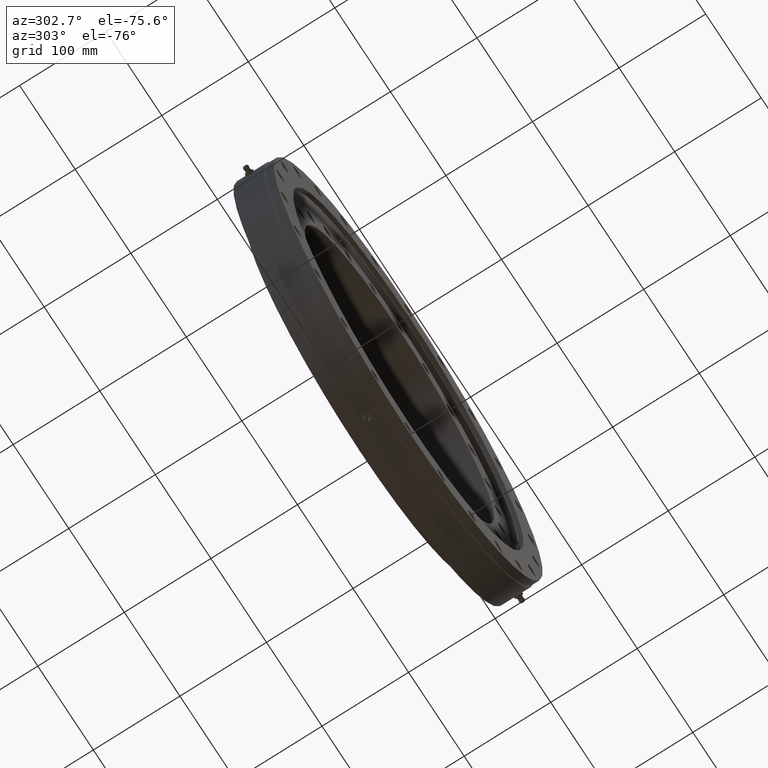
[diagram: clean part render]
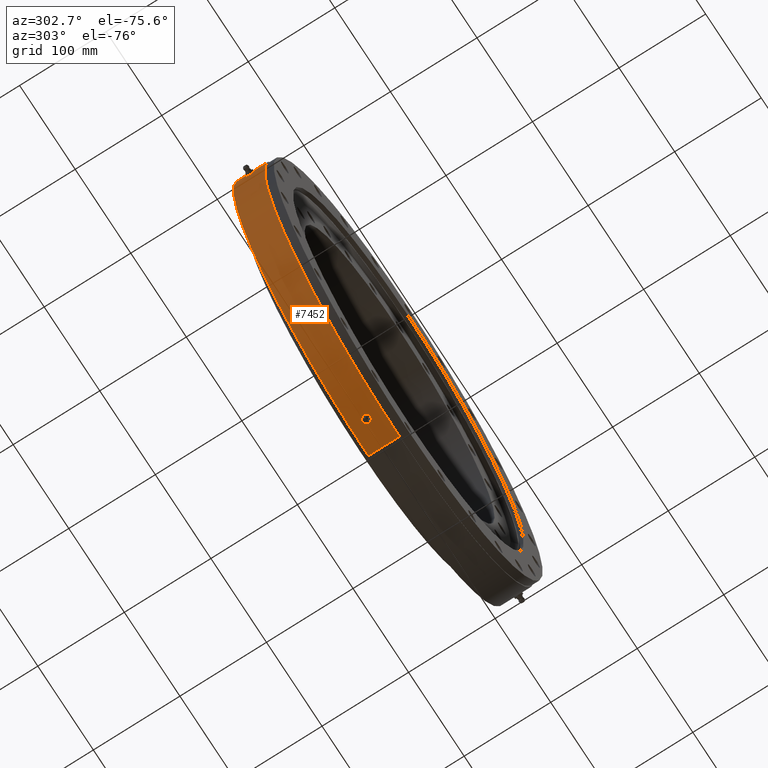
[diagram: same view with one face highlighted and labeled with its STEP entity id]
A machine part, auxiliary view. The second image highlights one B-rep face of the part: STEP entity #7452.
In plain terms, the highlighted cylindrical surface (partial cylindrical patch) has radius 243 mm, axis along (-0, 1, -0).
Its self-contained STEP definition (entity closure, byte-faithful):
#18 = CARTESIAN_POINT ( 'NONE',  ( -34.72491254708091200, 1.757442284641332000, -240.5061263413728300 ) ) ;
#20 = CARTESIAN_POINT ( 'NONE',  ( -241.1191026763337100, 3.144455854180189900, 30.17653216905824100 ) ) ;
#22 = CARTESIAN_POINT ( 'NONE',  ( -240.9809267302025800, 3.477012751141323100, 31.26088592137723400 ) ) ;
#99 = CARTESIAN_POINT ( 'NONE',  ( -241.1906164201388900, 2.782416166761482400, 29.59937113568640400 ) ) ;
#127 = CARTESIAN_POINT ( 'NONE',  ( -240.9516040616744000, 3.499804718934187000, 31.48615178787032700 ) ) ;
#128 = DIRECTION ( 'NONE',  ( -0.0000000000000000000, 1.000000000000000000, -0.0000000000000000000 ) ) ;
#135 = CARTESIAN_POINT ( 'NONE',  ( -240.8913668222058400, 3.500192813755318400, 31.94374187273907500 ) ) ;
#147 = LINE ( 'NONE', #3630, #7951 ) ;
#162 = CARTESIAN_POINT ( 'NONE',  ( -241.2685529993955500, 2.135343555572204500, 28.95689413755259900 ) ) ;
#166 = CARTESIAN_POINT ( 'NONE',  ( -241.2989256082384500, 1.751998858199931300, 28.70269821507032400 ) ) ;
#185 = CARTESIAN_POINT ( 'NONE',  ( -240.7139362015247500, -3.146202651099436800, 33.25425200555203300 ) ) ;
#201 = CARTESIAN_POINT ( 'NONE',  ( -241.3529515678563700, 0.2283797496406800300, 28.24451751197017300 ) ) ;
#253 = CARTESIAN_POINT ( 'NONE',  ( -241.2124371847255600, 2.634578848730858300, 29.42084538489981300 ) ) ;
#271 = CARTESIAN_POINT ( 'NONE',  ( -29.42084538489897500, 2.634578848730857900, -241.2124371847257600 ) ) ;
#295 = CARTESIAN_POINT ( 'NONE',  ( -28.42213462700708600, 1.127695102707587200, -241.3321152691196400 ) ) ;
#299 = LINE ( 'NONE', #7590, #6581 ) ;
#380 = CARTESIAN_POINT ( 'NONE',  ( -28.95689413755176700, 2.135343555572203600, -241.2685529993956700 ) ) ;
#392 = CARTESIAN_POINT ( 'NONE',  ( -28.59525260460150500, 1.548909344938113100, -241.3116638820062900 ) ) ;
#420 = CARTESIAN_POINT ( 'NONE',  ( -28.35537317190091100, 0.9064433533822586800, -241.3399569356119800 ) ) ;
#452 = CARTESIAN_POINT ( 'NONE',  ( -28.24451751196931700, 0.2283797496406801700, -241.3529515678564200 ) ) ;
#561 = CARTESIAN_POINT ( 'NONE',  ( -240.4651278621965100, -1.128307708272868100, 35.00757064697806000 ) ) ;
#575 = CARTESIAN_POINT ( 'NONE',  ( -241.2118900196123300, -2.638803523676507300, 29.42534312179625600 ) ) ;
#609 = CARTESIAN_POINT ( 'NONE',  ( -241.2685625646117800, -2.134968293939317100, 28.95680894287484700 ) ) ;
#630 = CARTESIAN_POINT ( 'NONE',  ( -241.3529515678563400, 3.712198269611329800E-009, 28.24451751197016600 ) ) ;
#651 = CARTESIAN_POINT ( 'NONE',  ( -241.3503811914468100, 0.4553559247066517600, 28.26650845336494900 ) ) ;
#695 = CARTESIAN_POINT ( 'NONE',  ( 2.975891721928068500E-014, 17.99999999999999600, -243.0000000000000000 ) ) ;
#774 = CARTESIAN_POINT ( 'NONE',  ( 0.0000000000000000000, 22.16364734299516900, 0.0000000000000000000 ) ) ;
#818 = CARTESIAN_POINT ( 'NONE',  ( -28.24451751196932000, 3.712198269611330200E-009, -241.3529515678564500 ) ) ;
#829 = CARTESIAN_POINT ( 'NONE',  ( -28.26650845336411100, 0.4553559247066516500, -241.3503811914469300 ) ) ;
#830 = CARTESIAN_POINT ( 'NONE',  ( -240.7712189265834000, -3.320720946241473300, 32.83693796150470900 ) ) ;
#885 = CARTESIAN_POINT ( 'NONE',  ( -240.8009401704551900, -3.387876472304710800, 32.61837294768805900 ) ) ;
#899 = CIRCLE ( 'NONE', #1870, 243.0000000000000000 ) ;
#943 = CARTESIAN_POINT ( 'NONE',  ( -35.18463154158597900, 3.712196848497612400E-009, -240.4392682223160000 ) ) ;
#1085 = EDGE_CURVE ( 'NONE', #1838, #4535, #3424, .T. ) ;
#1119 = CARTESIAN_POINT ( 'NONE',  ( -33.83506736415702000, -2.781634719699665100, -240.6329670407585600 ) ) ;
#1195 = CARTESIAN_POINT ( 'NONE',  ( -240.4425575392134200, -0.4586472358241421300, 35.16217429479539200 ) ) ;
#1254 = CARTESIAN_POINT ( 'NONE',  ( -32.61837294768721300, -3.387876472304709500, -240.8009401704553100 ) ) ;
#1264 = CARTESIAN_POINT ( 'NONE',  ( 0.0000000000000000000, 17.99999999999999600, 243.0000000000000000 ) ) ;
#1273 = CARTESIAN_POINT ( 'NONE',  ( -33.25425200555118700, -3.146202651099435900, -240.7139362015248600 ) ) ;
#1280 = CARTESIAN_POINT ( 'NONE',  ( -32.83693796150386400, -3.320720946241471500, -240.7712189265835700 ) ) ;
#1294 = EDGE_CURVE ( 'NONE', #8299, #4269, #7175, .T. ) ;
#1298 = CARTESIAN_POINT ( 'NONE',  ( -241.2512666094221200, 2.311676448635013400, 29.10072774187822700 ) ) ;
#1392 = CARTESIAN_POINT ( 'NONE',  ( -28.24451751196932000, 3.712198269611330200E-009, -241.3529515678564500 ) ) ;
#1477 = CARTESIAN_POINT ( 'NONE',  ( -240.5630846625418500, 2.315196556124911700, 34.32824544682481600 ) ) ;
#1478 = CARTESIAN_POINT ( 'NONE',  ( -28.24451751196932400, -0.2284313335087059000, -241.3529515678564200 ) ) ;
#1481 = CARTESIAN_POINT ( 'NONE',  ( -240.4392682223158300, 0.4624082631330342400, 35.18463154158680300 ) ) ;
#1487 = CARTESIAN_POINT ( 'NONE',  ( -34.00958345330650400, -2.636753741714202200, -240.6083421601263100 ) ) ;
#1495 = CARTESIAN_POINT ( 'NONE',  ( -241.0380180718742600, -3.387953241430623500, 30.81759603698869300 ) ) ;
#1498 = CARTESIAN_POINT ( 'NONE',  ( -240.5061263413727200, 1.757442284641337100, 34.72491254708176500 ) ) ;
#1505 = CARTESIAN_POINT ( 'NONE',  ( -240.6085499773024900, 2.638064779022696500, 34.00811396762021100 ) ) ;
#1506 = CARTESIAN_POINT ( 'NONE',  ( -28.26725448825875700, -0.4604170763101302400, -241.3502938152130100 ) ) ;
#1508 = CARTESIAN_POINT ( 'NONE',  ( -240.5425479235972500, 2.139171501301801100, 34.47171300586551000 ) ) ;
#1523 = CARTESIAN_POINT ( 'NONE',  ( -28.35611013354382200, -0.9088885414421924400, -241.3398703469610200 ) ) ;
#1524 = CARTESIAN_POINT ( 'NONE',  ( -240.6337395934463400, 2.785756367357565800, 33.82956584214708300 ) ) ;
#1532 = AXIS2_PLACEMENT_3D ( 'NONE', #774, #128, #3244 ) ;
#1533 = CARTESIAN_POINT ( 'NONE',  ( -29.42534312179541100, -2.638803523676508200, -241.2118900196124100 ) ) ;
#1564 = CARTESIAN_POINT ( 'NONE',  ( -28.59631392364659800, -1.551322616456310100, -241.3115383652525700 ) ) ;
#1581 = CARTESIAN_POINT ( 'NONE',  ( -28.70509491949122300, -1.755857761704131300, -241.2986398465832800 ) ) ;
#1591 = CARTESIAN_POINT ( 'NONE',  ( -240.8016190368143200, 3.389071178435659500, 32.61334498714048600 ) ) ;
#1593 = CARTESIAN_POINT ( 'NONE',  ( -240.6863879480369800, 3.039192833146311400, 33.45293428567472200 ) ) ;
#1607 = CARTESIAN_POINT ( 'NONE',  ( -240.7140111963404400, 3.146593086939689400, 33.25371966779230300 ) ) ;
#1617 = CARTESIAN_POINT ( 'NONE',  ( -241.3399569356118700, 0.9064433533822592300, 28.35537317190175300 ) ) ;
#1620 = CARTESIAN_POINT ( 'NONE',  ( -240.7717402698997400, 3.322145654968149000, 32.83312573271050600 ) ) ;
#1678 = CARTESIAN_POINT ( 'NONE',  ( -29.10089036872783600, -2.312148209654628400, -241.2512484618809800 ) ) ;
#1687 = CARTESIAN_POINT ( 'NONE',  ( -28.95680894287399500, -2.134968293939313500, -241.2685625646117800 ) ) ;
#1700 = CARTESIAN_POINT ( 'NONE',  ( -32.17056205587798700, -3.477719422679052200, -240.8611757376819500 ) ) ;
#1708 = CARTESIAN_POINT ( 'NONE',  ( -240.4392682223158600, 3.712198167923624000E-009, 35.18463154158681800 ) ) ;
#1732 = CARTESIAN_POINT ( 'NONE',  ( -240.4527685640396400, 0.9217573710211183200, 35.09268705196497300 ) ) ;
#1742 = VERTEX_POINT ( 'NONE', #7558 ) ;
#1744 = CARTESIAN_POINT ( 'NONE',  ( -240.4904716394561600, 1.553257856164766500, 34.83304033947684500 ) ) ;
#1800 = ORIENTED_EDGE ( 'NONE', *, *, #3787, .T. ) ;
#1801 = CARTESIAN_POINT ( 'NONE',  ( -241.0655808519011000, -3.321846791804257100, 30.60115397077885300 ) ) ;
#1814 = CARTESIAN_POINT ( 'NONE',  ( -33.45607648970316500, -3.037488619205876100, -240.6859521374086300 ) ) ;
#1838 = VERTEX_POINT ( 'NONE', #695 ) ;
#1870 = AXIS2_PLACEMENT_3D ( 'NONE', #5572, #5580, #5766 ) ;
#1899 = CARTESIAN_POINT ( 'NONE',  ( -31.26283506227028000, -3.477323251482655800, -240.9806745890331000 ) ) ;
#1910 = ORIENTED_EDGE ( 'NONE', *, *, #7539, .T. ) ;
#2030 = EDGE_CURVE ( 'NONE', #5781, #2214, #6524, .T. ) ;
#2065 = CARTESIAN_POINT ( 'NONE',  ( -30.81759603698784400, -3.387953241430622600, -241.0380180718743200 ) ) ;
#2180 = ORIENTED_EDGE ( 'NONE', *, *, #8188, .F. ) ;
#2208 = CARTESIAN_POINT ( 'NONE',  ( -240.4392682223158600, 3.712198167923624000E-009, 35.18463154158681800 ) ) ;
#2214 = VERTEX_POINT ( 'NONE', #2208 ) ;
#2307 = CARTESIAN_POINT ( 'NONE',  ( -240.9507378053163200, -3.500080710870365800, 31.49276211410816700 ) ) ;
#2321 = CARTESIAN_POINT ( 'NONE',  ( -34.32938319346411000, -2.313876657925268500, -240.5629221914053300 ) ) ;
#2330 = CARTESIAN_POINT ( 'NONE',  ( -29.97729043713422900, -3.036908214162354500, -241.1439363319118500 ) ) ;
#2331 = CARTESIAN_POINT ( 'NONE',  ( -34.47576405648488400, -2.133735774003275900, -240.5419668779303200 ) ) ;
#2396 = CARTESIAN_POINT ( 'NONE',  ( -34.83366322036394500, -1.552203200030042300, -240.4903815686522300 ) ) ;
#2511 = CARTESIAN_POINT ( 'NONE',  ( -35.07417789813611400, -0.9060143802480779000, -240.4554096332736900 ) ) ;
#2560 = CARTESIAN_POINT ( 'NONE',  ( -240.6859521374085200, -3.037488619205875700, 33.45607648970401000 ) ) ;
#2564 = CARTESIAN_POINT ( 'NONE',  ( -31.49276211410732200, -3.500080710870366700, -240.9507378053164600 ) ) ;
#2642 = CYLINDRICAL_SURFACE ( 'NONE', #1532, 243.0000000000000000 ) ;
#2679 = CARTESIAN_POINT ( 'NONE',  ( -241.1185802119558400, -3.146546317270871200, 30.18070861292664400 ) ) ;
#3019 = CARTESIAN_POINT ( 'NONE',  ( -30.60115397077800400, -3.321846791804256700, -241.0655808519011900 ) ) ;
#3090 = CARTESIAN_POINT ( 'NONE',  ( -241.3321525153319300, -1.127099090963811000, 28.42182050012058900 ) ) ;
#3244 = DIRECTION ( 'NONE',  ( 0.0000000000000000000, 0.0000000000000000000, 1.000000000000000000 ) ) ;
#3272 = B_SPLINE_CURVE_WITH_KNOTS ( 'NONE', 3,
 ( #5871, #6111, #4785, #2511, #4173, #2396, #5187, #2331, #2321, #1487, #1119, #1814, #1273, #1280, #1254, #1700, #4843, #2564, #1899, #2065, #3019, #5098, #2330, #3726, #1533, #1678, #1687, #1581, #1564, #4471, #1523, #1506, #1478, #1392 ),
 .UNSPECIFIED., .F., .F.,
 ( 4, 2, 2, 2, 2, 2, 2, 2, 2, 2, 2, 2, 2, 2, 2, 2, 4 ),
 ( 9.645115321492137600E-019, 0.0006839213565506646300, 0.001367842713101328200, 0.002051764069651991800, 0.002735685426202655500, 0.003419606782753319100, 0.004103528139303982800, 0.004787449495854646500, 0.005471370852405310100, 0.006155292208955973800, 0.006839213565506637400, 0.007523134922057301100, 0.008207056278607965600, 0.008890977635158630100, 0.009574898991709292900, 0.01025882034825995600, 0.01094274170481062000 ),
 .UNSPECIFIED. ) ;
#3289 = CARTESIAN_POINT ( 'NONE',  ( -240.8612334878946800, 3.477621149797298600, 32.17011353245743500 ) ) ;
#3302 = CARTESIAN_POINT ( 'NONE',  ( -240.8611757376818000, -3.477719422679051800, 32.17056205587883300 ) ) ;
#3307 = EDGE_LOOP ( 'NONE', ( #1910, #4358 ) ) ;
#3333 = CARTESIAN_POINT ( 'NONE',  ( -241.3116638820062600, 1.548909344938113100, 28.59525260460235800 ) ) ;
#3354 = CARTESIAN_POINT ( 'NONE',  ( -241.3321152691195600, 1.127695102707587000, 28.42213462700793200 ) ) ;
#3424 = CIRCLE ( 'NONE', #8266, 243.0000000000000000 ) ;
#3502 = ORIENTED_EDGE ( 'NONE', *, *, #1085, .F. ) ;
#3584 = ORIENTED_EDGE ( 'NONE', *, *, #7955, .T. ) ;
#3614 = CARTESIAN_POINT ( 'NONE',  ( -240.5419668779301800, -2.133735774003274100, 34.47576405648573700 ) ) ;
#3630 = CARTESIAN_POINT ( 'NONE',  ( 0.0000000000000000000, 22.16364734299516900, 243.0000000000000000 ) ) ;
#3682 = CARTESIAN_POINT ( 'NONE',  ( -241.3502938152127800, -0.4604170763101332900, 28.26725448825959200 ) ) ;
#3726 = CARTESIAN_POINT ( 'NONE',  ( -29.60082784711594100, -2.783473749434607600, -241.1904371287693900 ) ) ;
#3759 = VERTEX_POINT ( 'NONE', #6868 ) ;
#3787 = EDGE_CURVE ( 'NONE', #3759, #1742, #899, .T. ) ;
#3792 = CARTESIAN_POINT ( 'NONE',  ( -29.59937113568555100, 2.782416166761481100, -241.1906164201389200 ) ) ;
#3855 = CARTESIAN_POINT ( 'NONE',  ( -30.81717447229520700, 3.387787467424655300, -241.0380712540671800 ) ) ;
#3862 = ORIENTED_EDGE ( 'NONE', *, *, #1294, .T. ) ;
#3919 = CARTESIAN_POINT ( 'NONE',  ( -35.09268705196413400, 0.9217573710211186500, -240.4527685640397900 ) ) ;
#3967 = CARTESIAN_POINT ( 'NONE',  ( -34.83304033947600700, 1.553257856164766300, -240.4904716394563300 ) ) ;
#3983 = CARTESIAN_POINT ( 'NONE',  ( -34.47171300586467200, 2.139171501301797600, -240.5425479235974000 ) ) ;
#4010 = CARTESIAN_POINT ( 'NONE',  ( -34.32824544682395600, 2.315196556124909500, -240.5630846625419100 ) ) ;
#4040 = CARTESIAN_POINT ( 'NONE',  ( -34.00811396761934400, 2.638064779022693400, -240.6085499773025400 ) ) ;
#4064 = CARTESIAN_POINT ( 'NONE',  ( -31.26088592137637400, 3.477012751141322700, -240.9809267302027300 ) ) ;
#4112 = CARTESIAN_POINT ( 'NONE',  ( -33.45293428567388400, 3.039192833146310900, -240.6863879480371200 ) ) ;
#4159 = CARTESIAN_POINT ( 'NONE',  ( -33.82956584214622400, 2.785756367357564500, -240.6337395934462800 ) ) ;
#4173 = CARTESIAN_POINT ( 'NONE',  ( -35.00757064697721400, -1.128307708272867000, -240.4651278621966500 ) ) ;
#4232 = CARTESIAN_POINT ( 'NONE',  ( -33.25371966779144400, 3.146593086939690300, -240.7140111963405800 ) ) ;
#4236 = CARTESIAN_POINT ( 'NONE',  ( -32.17011353245659000, 3.477621149797297800, -240.8612334878947900 ) ) ;
#4237 = CARTESIAN_POINT ( 'NONE',  ( -240.4903815686520800, -1.552203200030042300, 34.83366322036481200 ) ) ;
#4257 = CARTESIAN_POINT ( 'NONE',  ( -241.2512484618810300, -2.312148209654629700, 29.10089036872869200 ) ) ;
#4269 = VERTEX_POINT ( 'NONE', #943 ) ;
#4289 = CARTESIAN_POINT ( 'NONE',  ( -32.83312573270965400, 3.322145654968151200, -240.7717402698998500 ) ) ;
#4337 = CARTESIAN_POINT ( 'NONE',  ( -32.61334498713964100, 3.389071178435660000, -240.8016190368144300 ) ) ;
#4358 = ORIENTED_EDGE ( 'NONE', *, *, #2030, .T. ) ;
#4364 = CARTESIAN_POINT ( 'NONE',  ( -31.94374187273823300, 3.500192813755318000, -240.8913668222059000 ) ) ;
#4365 = CARTESIAN_POINT ( 'NONE',  ( -241.3529515678563400, 3.712198269611329800E-009, 28.24451751197016600 ) ) ;
#4386 = CARTESIAN_POINT ( 'NONE',  ( -31.48615178786947400, 3.499804718934185700, -240.9516040616744000 ) ) ;
#4443 = ORIENTED_EDGE ( 'NONE', *, *, #6250, .T. ) ;
#4471 = CARTESIAN_POINT ( 'NONE',  ( -28.42182050011973600, -1.127099090963810800, -241.3321525153320100 ) ) ;
#4535 = VERTEX_POINT ( 'NONE', #1264 ) ;
#4653 = FACE_BOUND ( 'NONE', #6628, .T. ) ;
#4712 = CARTESIAN_POINT ( 'NONE',  ( -28.70269821506948600, 1.751998858199929700, -241.2989256082385300 ) ) ;
#4785 = CARTESIAN_POINT ( 'NONE',  ( -35.16217429479456100, -0.4586472358241420700, -240.4425575392135700 ) ) ;
#4789 = CARTESIAN_POINT ( 'NONE',  ( -241.1904371287692200, -2.783473749434606700, 29.60082784711677900 ) ) ;
#4843 = CARTESIAN_POINT ( 'NONE',  ( -31.94542779178382500, -3.499918841780854000, -240.8911408867126900 ) ) ;
#4885 = CARTESIAN_POINT ( 'NONE',  ( -240.4554096332735200, -0.9060143802480782300, 35.07417789813695900 ) ) ;
#4915 = CARTESIAN_POINT ( 'NONE',  ( -240.5629221914052200, -2.313876657925266300, 34.32938319346495600 ) ) ;
#4989 = CARTESIAN_POINT ( 'NONE',  ( -35.18463154158599300, 0.4624082631330351800, -240.4392682223161400 ) ) ;
#5037 = CARTESIAN_POINT ( 'NONE',  ( -35.18463154158597900, 3.712196848497612400E-009, -240.4392682223160000 ) ) ;
#5058 = CARTESIAN_POINT ( 'NONE',  ( -30.59638521048771400, 3.320200298392116200, -241.0661858935052100 ) ) ;
#5098 = CARTESIAN_POINT ( 'NONE',  ( -30.18070861292580500, -3.146546317270871200, -241.1185802119559000 ) ) ;
#5187 = CARTESIAN_POINT ( 'NONE',  ( -34.72723648908149800, -1.753249691622085700, -240.5057903307384500 ) ) ;
#5269 = CARTESIAN_POINT ( 'NONE',  ( -29.97713539458133200, 3.036880452041535300, -241.1439561222499600 ) ) ;
#5572 = CARTESIAN_POINT ( 'NONE',  ( 0.0000000000000000000, -18.00000000000004300, -2.297141635296116900E-015 ) ) ;
#5580 = DIRECTION ( 'NONE',  ( -0.0000000000000000000, 1.000000000000000000, -5.328613396463909800E-017 ) ) ;
#5603 = CARTESIAN_POINT ( 'NONE',  ( -241.2986398465832000, -1.755857761704134700, 28.70509491949207600 ) ) ;
#5627 = CARTESIAN_POINT ( 'NONE',  ( -240.4392682223158600, 3.712198167923624000E-009, 35.18463154158681800 ) ) ;
#5725 = CARTESIAN_POINT ( 'NONE',  ( -241.3529515678563400, 3.712198269611329800E-009, 28.24451751197016600 ) ) ;
#5766 = DIRECTION ( 'NONE',  ( 0.0000000000000000000, 5.711023789224056200E-017, 1.000000000000000000 ) ) ;
#5781 = VERTEX_POINT ( 'NONE', #4365 ) ;
#5857 = CARTESIAN_POINT ( 'NONE',  ( -29.10072774187738200, 2.311676448635013900, -241.2512666094222300 ) ) ;
#5871 = CARTESIAN_POINT ( 'NONE',  ( -35.18463154158597900, 3.712196848497612400E-009, -240.4392682223160000 ) ) ;
#5912 = CARTESIAN_POINT ( 'NONE',  ( -241.1439363319117300, -3.036908214162354500, 29.97729043713506800 ) ) ;
#6111 = CARTESIAN_POINT ( 'NONE',  ( -35.18463154158597900, -0.2312563553227470500, -240.4392682223160300 ) ) ;
#6133 = CARTESIAN_POINT ( 'NONE',  ( -240.6083421601261700, -2.636753741714200400, 34.00958345330734300 ) ) ;
#6136 = CARTESIAN_POINT ( 'NONE',  ( -240.4392682223159700, -0.2312563553227469400, 35.18463154158682500 ) ) ;
#6250 = EDGE_CURVE ( 'NONE', #1742, #4535, #147, .T. ) ;
#6379 = FACE_BOUND ( 'NONE', #3307, .T. ) ;
#6524 = B_SPLINE_CURVE_WITH_KNOTS ( 'NONE', 3,
 ( #5725, #201, #651, #1617, #3354, #3333, #166, #162, #1298, #253, #99, #8326, #20, #8291, #8346, #22, #127, #135, #3289, #1591, #1620, #1607, #1593, #1524, #1505, #1477, #1508, #1498, #1744, #1732, #1481, #1708 ),
 .UNSPECIFIED., .F., .F.,
 ( 4, 2, 2, 2, 2, 2, 2, 2, 2, 2, 2, 2, 2, 2, 2, 4 ),
 ( 0.01094274170481061700, 0.01162650859749862400, 0.01231027549018663000, 0.01299404238287463900, 0.01367780927556264500, 0.01436157616825065400, 0.01504534306093866000, 0.01572910995362666900, 0.01641287684631466400, 0.01709664373900266300, 0.01778041063169066200, 0.01846417752437865700, 0.01914794441706665200, 0.01983171130975465100, 0.02051547820244265000, 0.02188301198781865100 ),
 .UNSPECIFIED. ) ;
#6581 = VECTOR ( 'NONE', #7660, 1000.000000000000000 ) ;
#6621 = CARTESIAN_POINT ( 'NONE',  ( -240.9806745890329900, -3.477323251482655800, 31.26283506227112200 ) ) ;
#6628 = EDGE_LOOP ( 'NONE', ( #3584, #3862 ) ) ;
#6752 = CARTESIAN_POINT ( 'NONE',  ( -30.17653216905739200, 3.144455854180189900, -241.1191026763337700 ) ) ;
#6768 = EDGE_LOOP ( 'NONE', ( #2180, #1800, #4443, #3502 ) ) ;
#6868 = CARTESIAN_POINT ( 'NONE',  ( 2.975891721928068500E-014, -18.00000000000005700, -243.0000000000000000 ) ) ;
#6934 = CARTESIAN_POINT ( 'NONE',  ( -241.3115383652524600, -1.551322616456309600, 28.59631392364744000 ) ) ;
#7175 = B_SPLINE_CURVE_WITH_KNOTS ( 'NONE', 3,
 ( #818, #452, #829, #420, #295, #392, #4712, #380, #5857, #271, #3792, #5269, #6752, #5058, #3855, #4064, #4386, #4364, #4236, #4337, #4289, #4232, #4112, #4159, #4040, #4010, #3983, #18, #3967, #3919, #4989, #5037 ),
 .UNSPECIFIED., .F., .F.,
 ( 4, 2, 2, 2, 2, 2, 2, 2, 2, 2, 2, 2, 2, 2, 2, 4 ),
 ( 0.01094274170481062000, 0.01162650859749862200, 0.01231027549018662500, 0.01299404238287462700, 0.01367780927556263100, 0.01436157616825063300, 0.01504534306093863500, 0.01572910995362663800, 0.01641287684631464000, 0.01709664373900264500, 0.01778041063169064800, 0.01846417752437865000, 0.01914794441706665200, 0.01983171130975465400, 0.02051547820244265700, 0.02188301198781865400 ),
 .UNSPECIFIED. ) ;
#7430 = CARTESIAN_POINT ( 'NONE',  ( -28.24451751196932000, 3.712198269611330200E-009, -241.3529515678564500 ) ) ;
#7437 = DIRECTION ( 'NONE',  ( -0.0000000000000000000, 1.000000000000000000, -0.0000000000000000000 ) ) ;
#7445 = DIRECTION ( 'NONE',  ( 0.0000000000000000000, 0.0000000000000000000, 1.000000000000000000 ) ) ;
#7452 = ADVANCED_FACE ( 'NONE', ( #8023, #6379, #4653 ), #2642, .T. ) ;
#7458 = CARTESIAN_POINT ( 'NONE',  ( 0.0000000000000000000, 17.99999999999999600, 0.0000000000000000000 ) ) ;
#7524 = CARTESIAN_POINT ( 'NONE',  ( -240.8911408867124900, -3.499918841780852700, 31.94542779178464900 ) ) ;
#7539 = EDGE_CURVE ( 'NONE', #2214, #5781, #7894, .T. ) ;
#7558 = CARTESIAN_POINT ( 'NONE',  ( 0.0000000000000000000, -18.00000000000002800, 243.0000000000000000 ) ) ;
#7590 = CARTESIAN_POINT ( 'NONE',  ( 2.975891721928068500E-014, 22.16364734299516900, -243.0000000000000000 ) ) ;
#7647 = CARTESIAN_POINT ( 'NONE',  ( -241.3398703469609400, -0.9088885414421952200, 28.35611013354467100 ) ) ;
#7660 = DIRECTION ( 'NONE',  ( -0.0000000000000000000, 1.000000000000000000, -0.0000000000000000000 ) ) ;
#7894 = B_SPLINE_CURVE_WITH_KNOTS ( 'NONE', 3,
 ( #5627, #6136, #1195, #4885, #561, #4237, #8274, #3614, #4915, #6133, #7953, #2560, #185, #830, #885, #3302, #7524, #2307, #6621, #1495, #1801, #2679, #5912, #4789, #575, #4257, #609, #5603, #6934, #3090, #7647, #3682, #8350, #630 ),
 .UNSPECIFIED., .F., .F.,
 ( 4, 2, 2, 2, 2, 2, 2, 2, 2, 2, 2, 2, 2, 2, 2, 2, 4 ),
 ( 9.810237365785978700E-019, 0.0006839213565506686400, 0.001367842713101336400, 0.002051764069652004000, 0.002735685426202671500, 0.003419606782753339500, 0.004103528139304007100, 0.004787449495854675100, 0.005471370852405342200, 0.006155292208956011100, 0.006839213565506667800, 0.007523134922057325400, 0.008207056278607984700, 0.008890977635158642300, 0.009574898991709301600, 0.01025882034825995700, 0.01094274170481061700 ),
 .UNSPECIFIED. ) ;
#7914 = DIRECTION ( 'NONE',  ( -0.0000000000000000000, 1.000000000000000000, -0.0000000000000000000 ) ) ;
#7951 = VECTOR ( 'NONE', #7914, 1000.000000000000000 ) ;
#7953 = CARTESIAN_POINT ( 'NONE',  ( -240.6329670407584700, -2.781634719699665600, 33.83506736415786500 ) ) ;
#7955 = EDGE_CURVE ( 'NONE', #4269, #8299, #3272, .T. ) ;
#8023 = FACE_OUTER_BOUND ( 'NONE', #6768, .T. ) ;
#8188 = EDGE_CURVE ( 'NONE', #3759, #1838, #299, .T. ) ;
#8266 = AXIS2_PLACEMENT_3D ( 'NONE', #7458, #7437, #7445 ) ;
#8274 = CARTESIAN_POINT ( 'NONE',  ( -240.5057903307383400, -1.753249691622084300, 34.72723648908234400 ) ) ;
#8291 = CARTESIAN_POINT ( 'NONE',  ( -241.0661858935051200, 3.320200298392116600, 30.59638521048856000 ) ) ;
#8299 = VERTEX_POINT ( 'NONE', #7430 ) ;
#8326 = CARTESIAN_POINT ( 'NONE',  ( -241.1439561222499000, 3.036880452041534500, 29.97713539458216300 ) ) ;
#8346 = CARTESIAN_POINT ( 'NONE',  ( -241.0380712540670900, 3.387787467424656600, 30.81717447229606000 ) ) ;
#8350 = CARTESIAN_POINT ( 'NONE',  ( -241.3529515678563400, -0.2284313335087058400, 28.24451751197016900 ) ) ;